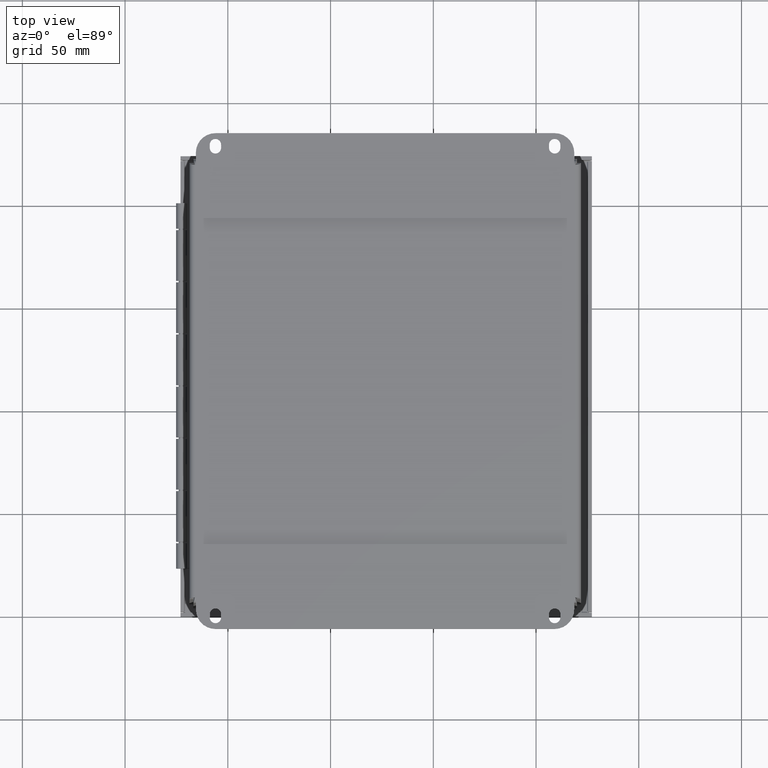
[diagram: clean part render]
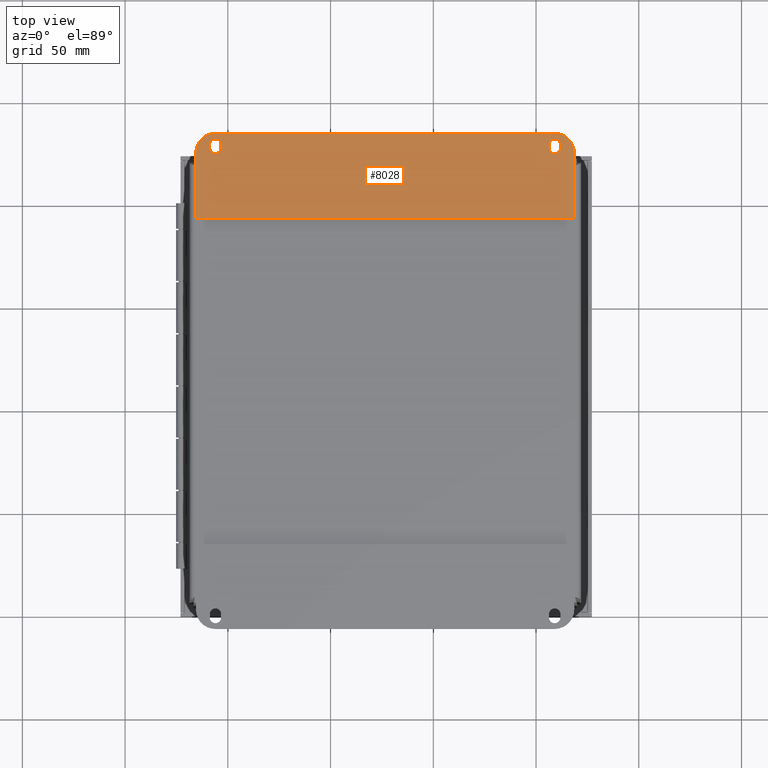
[diagram: same view with one face highlighted and labeled with its STEP entity id]
A machine part, top view. The second image highlights one B-rep face of the part: STEP entity #8028.
In plain terms, the highlighted planar face has unit normal (-0, -0, 1).
Its self-contained STEP definition (entity closure, byte-faithful):
#314=FACE_BOUND('',#1707,.T.);
#315=FACE_BOUND('',#1708,.T.);
#517=CIRCLE('',#8650,0.109);
#519=CIRCLE('',#8654,0.109);
#521=CIRCLE('',#8658,0.109);
#523=CIRCLE('',#8662,0.109);
#525=CIRCLE('',#8665,0.375);
#528=CIRCLE('',#8671,0.375);
#1160=FACE_OUTER_BOUND('',#1706,.T.);
#1706=EDGE_LOOP('',(#6777,#6778,#6779,#6780,#6781,#6782));
#1707=EDGE_LOOP('',(#6783,#6784,#6785,#6786));
#1708=EDGE_LOOP('',(#6787,#6788,#6789,#6790));
#2417=LINE('',#13496,#3131);
#2422=LINE('',#13510,#3136);
#2425=LINE('',#13520,#3139);
#2430=LINE('',#13534,#3144);
#2437=LINE('',#13555,#3151);
#2443=LINE('',#13572,#3157);
#2445=LINE('',#13575,#3159);
#2446=LINE('',#13577,#3160);
#3131=VECTOR('',#10548,0.0630000000000001);
#3136=VECTOR('',#10561,0.0629999999999996);
#3139=VECTOR('',#10572,0.0630000000000001);
#3144=VECTOR('',#10585,0.0629999999999998);
#3151=VECTOR('',#10606,1.25);
#3157=VECTOR('',#10622,1.25);
#3159=VECTOR('',#10626,6.5);
#3160=VECTOR('',#10629,7.25);
#3781=VERTEX_POINT('',#13494);
#3782=VERTEX_POINT('',#13495);
#3785=VERTEX_POINT('',#13503);
#3787=VERTEX_POINT('',#13509);
#3789=VERTEX_POINT('',#13518);
#3790=VERTEX_POINT('',#13519);
#3793=VERTEX_POINT('',#13527);
#3795=VERTEX_POINT('',#13533);
#3797=VERTEX_POINT('',#13542);
#3798=VERTEX_POINT('',#13543);
#3802=VERTEX_POINT('',#13553);
#3806=VERTEX_POINT('',#13565);
#3807=VERTEX_POINT('',#13566);
#3808=VERTEX_POINT('',#13571);
#4777=EDGE_CURVE('',#3781,#3782,#2417,.T.);
#4781=EDGE_CURVE('',#3785,#3781,#517,.T.);
#4784=EDGE_CURVE('',#3787,#3785,#2422,.T.);
#4787=EDGE_CURVE('',#3782,#3787,#519,.T.);
#4789=EDGE_CURVE('',#3789,#3790,#2425,.T.);
#4793=EDGE_CURVE('',#3793,#3789,#521,.T.);
#4796=EDGE_CURVE('',#3795,#3793,#2430,.T.);
#4799=EDGE_CURVE('',#3790,#3795,#523,.T.);
#4801=EDGE_CURVE('',#3797,#3798,#525,.T.);
#4807=EDGE_CURVE('',#3802,#3797,#2437,.T.);
#4812=EDGE_CURVE('',#3806,#3807,#528,.T.);
#4815=EDGE_CURVE('',#3807,#3808,#2443,.T.);
#4817=EDGE_CURVE('',#3798,#3806,#2445,.T.);
#4818=EDGE_CURVE('',#3808,#3802,#2446,.T.);
#6777=ORIENTED_EDGE('',*,*,#4801,.F.);
#6778=ORIENTED_EDGE('',*,*,#4807,.F.);
#6779=ORIENTED_EDGE('',*,*,#4818,.F.);
#6780=ORIENTED_EDGE('',*,*,#4815,.F.);
#6781=ORIENTED_EDGE('',*,*,#4812,.F.);
#6782=ORIENTED_EDGE('',*,*,#4817,.F.);
#6783=ORIENTED_EDGE('',*,*,#4777,.T.);
#6784=ORIENTED_EDGE('',*,*,#4787,.T.);
#6785=ORIENTED_EDGE('',*,*,#4784,.T.);
#6786=ORIENTED_EDGE('',*,*,#4781,.T.);
#6787=ORIENTED_EDGE('',*,*,#4789,.T.);
#6788=ORIENTED_EDGE('',*,*,#4799,.T.);
#6789=ORIENTED_EDGE('',*,*,#4796,.T.);
#6790=ORIENTED_EDGE('',*,*,#4793,.T.);
#7303=PLANE('',#8675);
#8028=ADVANCED_FACE('',(#1160,#314,#315),#7303,.T.);
#8650=AXIS2_PLACEMENT_3D('',#13504,#10554,#10555);
#8654=AXIS2_PLACEMENT_3D('',#13515,#10566,#10567);
#8658=AXIS2_PLACEMENT_3D('',#13528,#10578,#10579);
#8662=AXIS2_PLACEMENT_3D('',#13539,#10590,#10591);
#8665=AXIS2_PLACEMENT_3D('',#13544,#10596,#10597);
#8671=AXIS2_PLACEMENT_3D('',#13567,#10616,#10617);
#8675=AXIS2_PLACEMENT_3D('',#13578,#10630,#10631);
#10548=DIRECTION('',(1.38760533011518E-15,1.,0.));
#10554=DIRECTION('center_axis',(0.,0.,-1.));
#10555=DIRECTION('ref_axis',(-1.,-1.60402084031663E-15,0.));
#10561=DIRECTION('',(1.38760533011519E-15,-1.,0.));
#10566=DIRECTION('center_axis',(0.,0.,-1.));
#10567=DIRECTION('ref_axis',(1.,0.,0.));
#10572=DIRECTION('',(0.,1.,0.));
#10578=DIRECTION('center_axis',(0.,0.,-1.));
#10579=DIRECTION('ref_axis',(-1.,0.,0.));
#10585=DIRECTION('',(0.,-1.,0.));
#10590=DIRECTION('center_axis',(0.,0.,-1.));
#10591=DIRECTION('ref_axis',(1.,0.,0.));
#10596=DIRECTION('center_axis',(0.,0.,-1.));
#10597=DIRECTION('ref_axis',(-0.707106781186548,0.707106781186547,0.));
#10606=DIRECTION('',(-3.06161699786838E-16,1.,0.));
#10616=DIRECTION('center_axis',(0.,0.,-1.));
#10617=DIRECTION('ref_axis',(0.707106781186548,0.707106781186547,0.));
#10622=DIRECTION('',(0.,-1.,0.));
#10626=DIRECTION('',(1.,9.64624946728347E-17,0.));
#10629=DIRECTION('',(-1.,0.,0.));
#10630=DIRECTION('center_axis',(0.,0.,1.));
#10631=DIRECTION('ref_axis',(1.,0.,0.));
#13494=CARTESIAN_POINT('',(0.265999999999999,1.3435,0.074));
#13495=CARTESIAN_POINT('',(0.265999999999999,1.4065,0.074));
#13496=CARTESIAN_POINT('',(0.265999999999999,1.078,0.074));
#13503=CARTESIAN_POINT('',(0.483999999999999,1.3435,0.074));
#13504=CARTESIAN_POINT('Origin',(0.374999999999999,1.3435,0.074));
#13509=CARTESIAN_POINT('',(0.483999999999999,1.4065,0.074));
#13510=CARTESIAN_POINT('',(0.483999999999999,1.1095,0.074));
#13515=CARTESIAN_POINT('Origin',(0.374999999999999,1.4065,0.074));
#13518=CARTESIAN_POINT('',(6.766,1.3435,0.074));
#13519=CARTESIAN_POINT('',(6.766,1.4065,0.074));
#13520=CARTESIAN_POINT('',(6.766,1.078,0.074));
#13527=CARTESIAN_POINT('',(6.984,1.3435,0.074));
#13528=CARTESIAN_POINT('Origin',(6.875,1.3435,0.074));
#13533=CARTESIAN_POINT('',(6.984,1.4065,0.074));
#13534=CARTESIAN_POINT('',(6.984,1.1095,0.074));
#13539=CARTESIAN_POINT('Origin',(6.875,1.4065,0.074));
#13542=CARTESIAN_POINT('',(-3.82702124733548E-16,1.25,0.074));
#13543=CARTESIAN_POINT('',(0.375,1.625,0.074));
#13544=CARTESIAN_POINT('Origin',(0.375,1.25,0.074));
#13553=CARTESIAN_POINT('',(0.,0.,0.074));
#13555=CARTESIAN_POINT('',(-4.97512762153612E-16,1.625,0.074));
#13565=CARTESIAN_POINT('',(6.875,1.625,0.074));
#13566=CARTESIAN_POINT('',(7.25,1.25,0.074));
#13567=CARTESIAN_POINT('Origin',(6.875,1.25,0.074));
#13571=CARTESIAN_POINT('',(7.25,0.,0.074));
#13572=CARTESIAN_POINT('',(7.25,0.,0.074));
#13575=CARTESIAN_POINT('',(7.25,1.625,0.074));
#13577=CARTESIAN_POINT('',(0.,0.,0.074));
#13578=CARTESIAN_POINT('Origin',(3.625,0.8125,0.074));